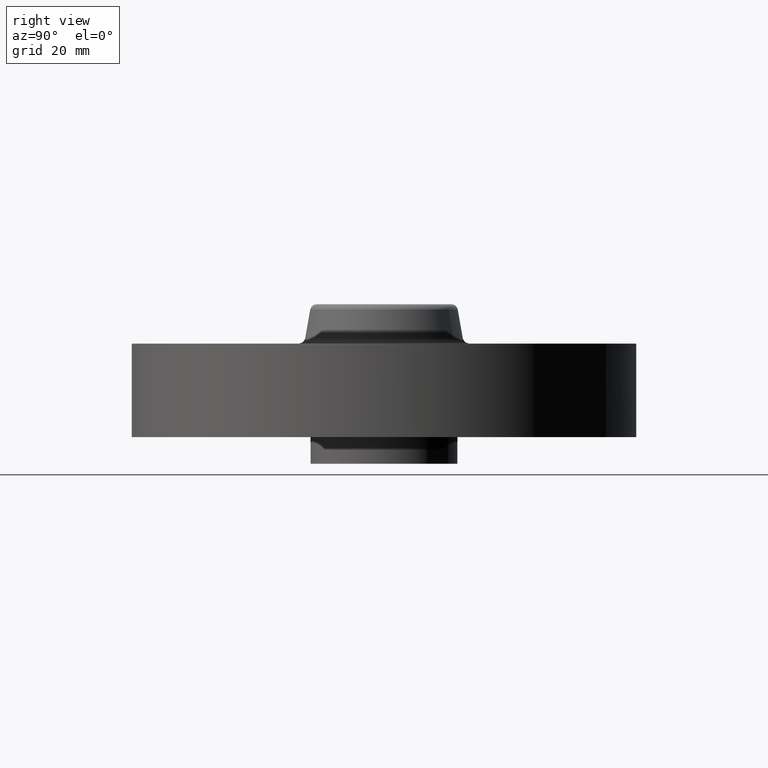
[diagram: clean part render]
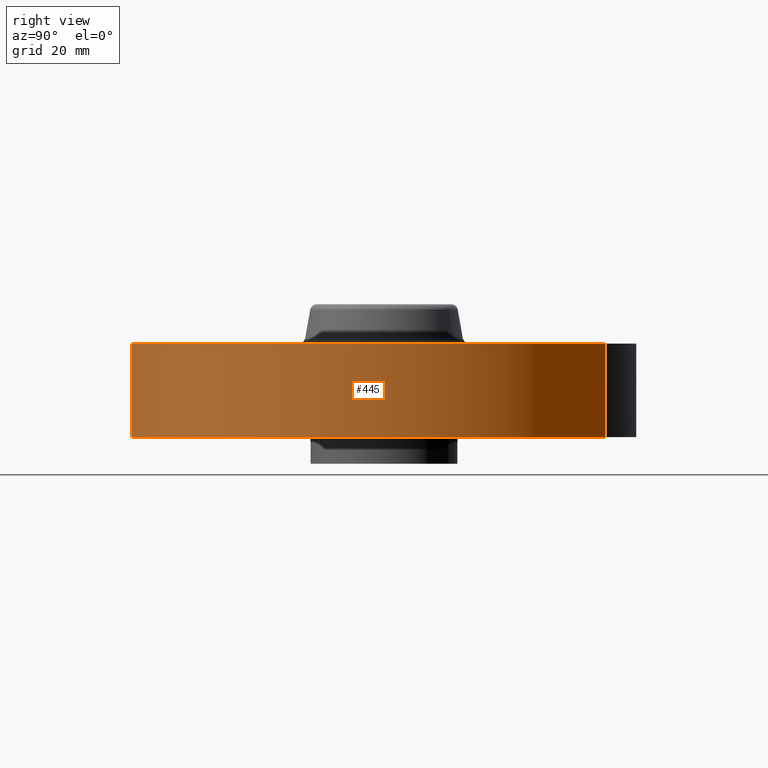
[diagram: same view with one face highlighted and labeled with its STEP entity id]
A machine part, right view. The second image highlights one B-rep face of the part: STEP entity #445.
In plain terms, the highlighted cylindrical surface (partial cylindrical patch) has radius 60.325 mm, axis along (0, 0, -1).
Its self-contained STEP definition (entity closure, byte-faithful):
#392=AXIS2_PLACEMENT_3D('Cylinder Axis2P3D',#389,#390,#391) ;
#431=AXIS2_PLACEMENT_3D('Circle Axis2P3D',#429,#430,$) ;
#436=AXIS2_PLACEMENT_3D('Circle Axis2P3D',#434,#435,$) ;
#389=CARTESIAN_POINT('Axis2P3D Location',(0.,0.,0.500000000002)) ;
#398=CARTESIAN_POINT('Vertex',(-1.13863565419,-2.0842585845,3.49676543189E-016)) ;
#400=CARTESIAN_POINT('Vertex',(1.13863565419,2.0842585845,3.49676543189E-016)) ;
#403=CARTESIAN_POINT('Line Origine',(-1.13863565419,-2.0842585845,0.440000000002)) ;
#407=CARTESIAN_POINT('Vertex',(-1.13863565419,-2.0842585845,0.880000000004)) ;
#414=CARTESIAN_POINT('Vertex',(1.13863565419,2.0842585845,0.880000000004)) ;
#417=CARTESIAN_POINT('Line Origine',(1.13863565419,2.0842585845,0.440000000002)) ;
#429=CARTESIAN_POINT('Axis2P3D Location',(0.,0.,2.79741234551E-016)) ;
#434=CARTESIAN_POINT('Axis2P3D Location',(0.,0.,0.880000000004)) ;
#390=DIRECTION('Axis2P3D Direction',(0.,0.,-0.0393700787402)) ;
#391=DIRECTION('Axis2P3D XDirection',(0.0188750212049,0.0345504945626,0.)) ;
#404=DIRECTION('Vector Direction',(0.,0.,-0.0393700787402)) ;
#418=DIRECTION('Vector Direction',(0.,0.,-0.0393700787402)) ;
#430=DIRECTION('Axis2P3D Direction',(0.,0.,-0.0393700787402)) ;
#435=DIRECTION('Axis2P3D Direction',(0.,0.,-0.0393700787402)) ;
#405=VECTOR('Line Direction',#404,0.0393700787402) ;
#419=VECTOR('Line Direction',#418,0.0393700787402) ;
#440=ORIENTED_EDGE('',*,*,#433,.F.) ;
#441=ORIENTED_EDGE('',*,*,#421,.T.) ;
#442=ORIENTED_EDGE('',*,*,#438,.T.) ;
#443=ORIENTED_EDGE('',*,*,#409,.F.) ;
#445=ADVANCED_FACE('PartBody',(#444),#393,.T.) ;
#432=CIRCLE('generated circle',#431,2.37500000001) ;
#437=CIRCLE('generated circle',#436,2.37500000001) ;
#393=CYLINDRICAL_SURFACE('generated cylinder',#392,2.37500000001) ;
#409=EDGE_CURVE('',#399,#408,#406,.F.) ;
#421=EDGE_CURVE('',#401,#415,#420,.F.) ;
#433=EDGE_CURVE('',#401,#399,#432,.T.) ;
#438=EDGE_CURVE('',#415,#408,#437,.T.) ;
#439=EDGE_LOOP('',(#440,#441,#442,#443)) ;
#444=FACE_OUTER_BOUND('',#439,.T.) ;
#406=LINE('Line',#403,#405) ;
#420=LINE('Line',#417,#419) ;
#399=VERTEX_POINT('',#398) ;
#401=VERTEX_POINT('',#400) ;
#408=VERTEX_POINT('',#407) ;
#415=VERTEX_POINT('',#414) ;